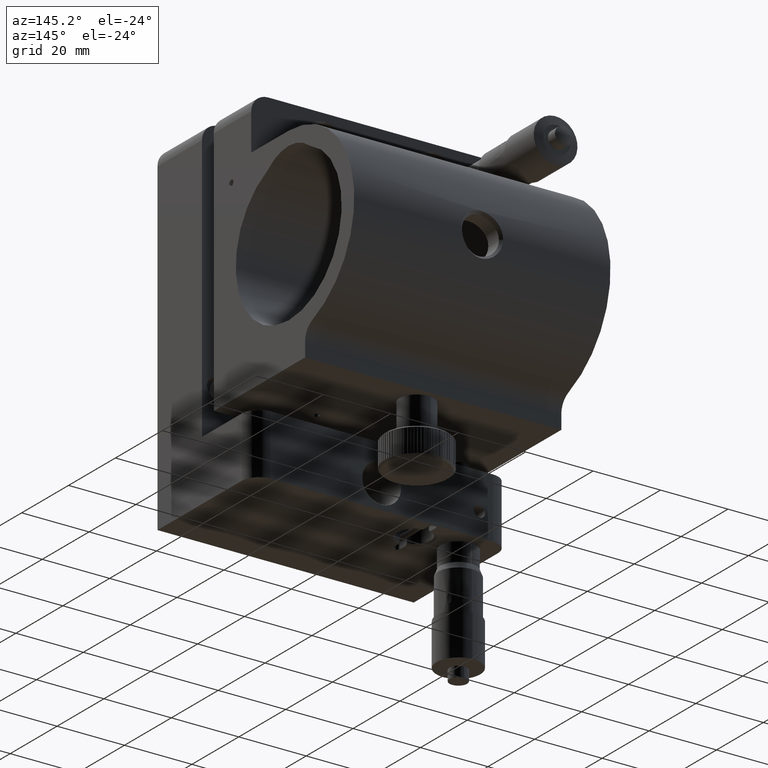
[diagram: clean part render]
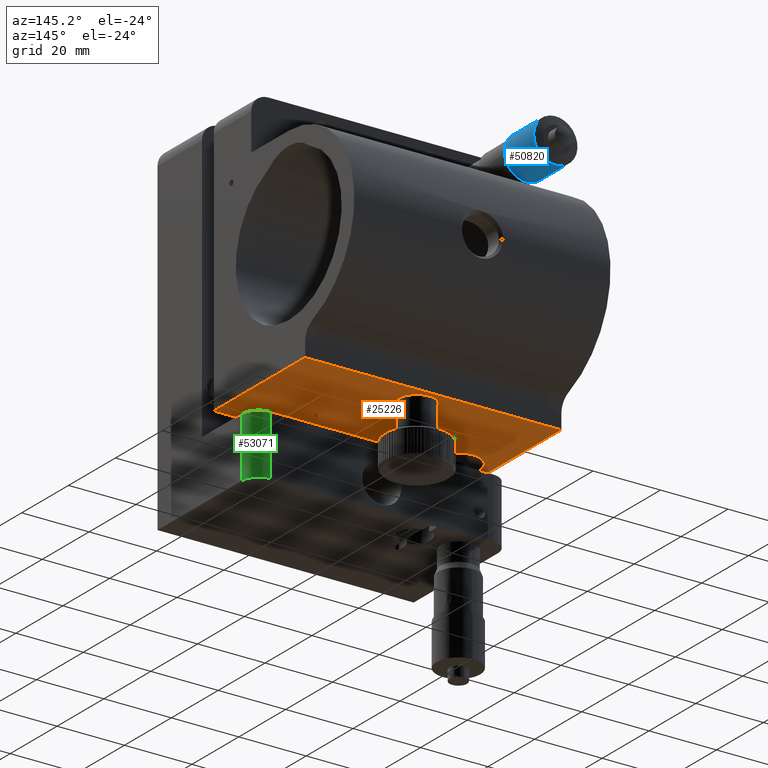
[diagram: same view with three faces highlighted in distinct colors, each labeled with its STEP entity id]
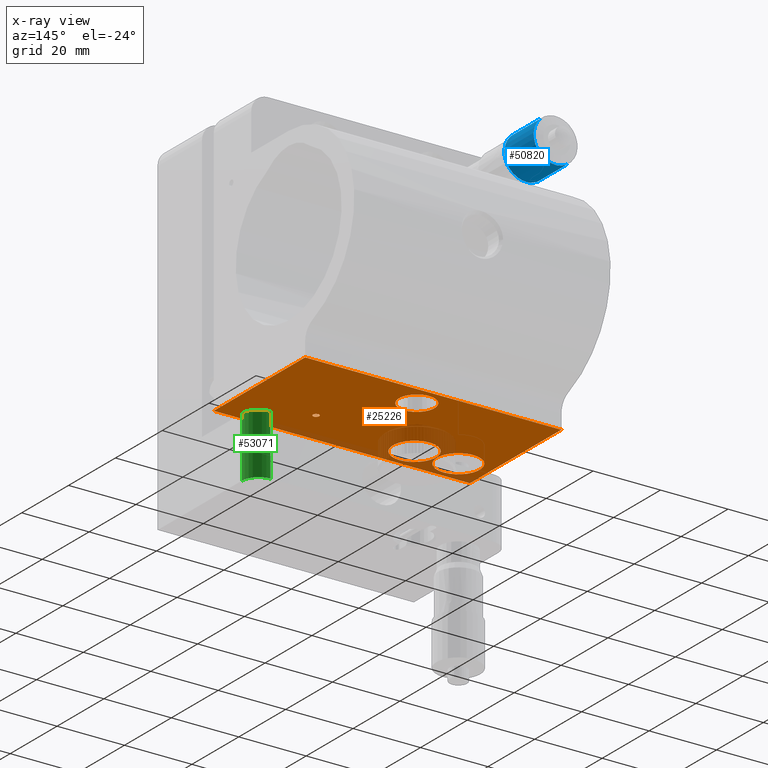
[diagram: x-ray of the same camera — body ghosted, the three highlighted faces saturated]
A machine part, auxiliary view with three faces highlighted in distinct colors.
The next image is the same camera in x-ray (body ghosted, the three faces saturated) — at least one of them is partly hidden behind the body in this view.
Their STEP definitions:

[orange] entity #25226 — the highlighted planar face has unit normal (-0, 0, 1).
#1284 = EDGE_LOOP ( 'NONE', ( #29967, #71806 ) ) ;
#1731 = EDGE_CURVE ( 'NONE', #67800, #79619, #37650, .T. ) ;
#2484 = DIRECTION ( 'NONE',  ( -0.0000000000000000000, 5.693451408334136400E-015, 1.000000000000000000 ) ) ;
#4480 = DIRECTION ( 'NONE',  ( 0.0000000000000000000, -1.000000000000000000, 5.286776307738821900E-015 ) ) ;
#4656 = EDGE_CURVE ( 'NONE', #81861, #44429, #77744, .T. ) ;
#8964 = DIRECTION ( 'NONE',  ( 0.0000000000000000000, -5.693451408334136400E-015, -1.000000000000000000 ) ) ;
#9217 = CARTESIAN_POINT ( 'NONE',  ( -37.99999999999999300, 23.99999999999979400, -35.00000000000009900 ) ) ;
#9511 = EDGE_LOOP ( 'NONE', ( #49583, #84380 ) ) ;
#11155 = FACE_OUTER_BOUND ( 'NONE', #70724, .T. ) ;
#11372 = EDGE_CURVE ( 'NONE', #89491, #56683, #25278, .T. ) ;
#11404 = VERTEX_POINT ( 'NONE', #81764 ) ;
#11419 = DIRECTION ( 'NONE',  ( -0.0000000000000000000, 5.693451408334136400E-015, 1.000000000000000000 ) ) ;
#12377 = EDGE_CURVE ( 'NONE', #11404, #14679, #49799, .T. ) ;
#13016 = CARTESIAN_POINT ( 'NONE',  ( 16.00000000000000700, 35.09999999999979500, -35.00000000000016300 ) ) ;
#13341 = FACE_BOUND ( 'NONE', #1284, .T. ) ;
#14010 = DIRECTION ( 'NONE',  ( 0.0000000000000000000, 1.000000000000000000, -5.463695987328524900E-015 ) ) ;
#14574 = VECTOR ( 'NONE', #60483, 1000.000000000000000 ) ;
#14679 = VERTEX_POINT ( 'NONE', #77576 ) ;
#15234 = VERTEX_POINT ( 'NONE', #43615 ) ;
#15934 = VERTEX_POINT ( 'NONE', #63987 ) ;
#19599 = VERTEX_POINT ( 'NONE', #66217 ) ;
#19631 = CARTESIAN_POINT ( 'NONE',  ( 38.00000000000000700, 23.99999999999979400, -35.00000000000009900 ) ) ;
#20973 = FACE_BOUND ( 'NONE', #9511, .T. ) ;
#21770 = AXIS2_PLACEMENT_3D ( 'NONE', #87088, #88012, #4480 ) ;
#22333 = DIRECTION ( 'NONE',  ( -1.000000000000000000, -0.0000000000000000000, -0.0000000000000000000 ) ) ;
#22703 = EDGE_CURVE ( 'NONE', #15934, #38071, #58740, .T. ) ;
#24306 = DIRECTION ( 'NONE',  ( -0.0000000000000000000, 1.000000000000000000, -5.693451408334136400E-015 ) ) ;
#25226 = ADVANCED_FACE ( 'NONE', ( #31915, #25356, #20973, #13341, #11155 ), #36026, .F. ) ;
#25278 = CIRCLE ( 'NONE', #68379, 5.250000000000018700 ) ;
#25356 = FACE_BOUND ( 'NONE', #85536, .T. ) ;
#25732 = DIRECTION ( 'NONE',  ( 0.0000000000000000000, -5.693451408334136400E-015, -1.000000000000000000 ) ) ;
#26789 = CARTESIAN_POINT ( 'NONE',  ( 16.00000000000000700, 36.89999999999979300, -35.00000000000017800 ) ) ;
#29216 = DIRECTION ( 'NONE',  ( 0.0000000000000000000, -5.693451408334136400E-015, -1.000000000000000000 ) ) ;
#29745 = DIRECTION ( 'NONE',  ( 0.0000000000000000000, 1.000000000000000000, -7.709882115452493200E-015 ) ) ;
#29763 = EDGE_CURVE ( 'NONE', #15234, #44429, #89440, .T. ) ;
#29967 = ORIENTED_EDGE ( 'NONE', *, *, #53510, .F. ) ;
#31325 = CARTESIAN_POINT ( 'NONE',  ( 8.315863060756662400E-015, 50.74999999999958100, -35.00000000000025600 ) ) ;
#31915 = FACE_BOUND ( 'NONE', #89379, .T. ) ;
#33190 = ORIENTED_EDGE ( 'NONE', *, *, #4656, .T. ) ;
#33248 = CARTESIAN_POINT ( 'NONE',  ( -15.99999999999999300, 38.39999999999960100, -35.00000000000018500 ) ) ;
#35137 = EDGE_CURVE ( 'NONE', #79619, #67800, #87957, .T. ) ;
#35607 = ORIENTED_EDGE ( 'NONE', *, *, #39092, .T. ) ;
#36026 = PLANE ( 'NONE',  #48894 ) ;
#36584 = ORIENTED_EDGE ( 'NONE', *, *, #11372, .T. ) ;
#37650 = CIRCLE ( 'NONE', #75320, 0.8999999999999980200 ) ;
#37868 = DIRECTION ( 'NONE',  ( 0.0000000000000000000, -1.000000000000000000, 5.421010862427523000E-015 ) ) ;
#38071 = VERTEX_POINT ( 'NONE', #33248 ) ;
#38465 = CARTESIAN_POINT ( 'NONE',  ( -15.99999999999999300, 31.99999999999959900, -35.00000000000014900 ) ) ;
#39092 = EDGE_CURVE ( 'NONE', #19599, #81861, #82801, .T. ) ;
#41302 = AXIS2_PLACEMENT_3D ( 'NONE', #38465, #2484, #37868 ) ;
#42043 = CARTESIAN_POINT ( 'NONE',  ( -28.99999999999999600, 31.99999999999959900, -35.00000000000014200 ) ) ;
#42282 = CARTESIAN_POINT ( 'NONE',  ( 38.00000000000000700, 62.99999999999979400, -35.00000000000032000 ) ) ;
#43126 = ORIENTED_EDGE ( 'NONE', *, *, #29763, .F. ) ;
#43615 = CARTESIAN_POINT ( 'NONE',  ( 38.00000000000000700, 62.99999999999979400, -35.00000000000032000 ) ) ;
#44405 = DIRECTION ( 'NONE',  ( 0.0000000000000000000, 1.000000000000000000, -5.463695987328524900E-015 ) ) ;
#44429 = VERTEX_POINT ( 'NONE', #68862 ) ;
#45930 = CIRCLE ( 'NONE', #21770, 5.250000000000018700 ) ;
#48097 = DIRECTION ( 'NONE',  ( -0.0000000000000000000, 5.693451408334136400E-015, 1.000000000000000000 ) ) ;
#48393 = EDGE_CURVE ( 'NONE', #19599, #15234, #83178, .T. ) ;
#48894 = AXIS2_PLACEMENT_3D ( 'NONE', #78032, #49734, #85053 ) ;
#48946 = CARTESIAN_POINT ( 'NONE',  ( 16.00000000000000700, 35.99999999999979400, -35.00000000000017100 ) ) ;
#49583 = ORIENTED_EDGE ( 'NONE', *, *, #1731, .F. ) ;
#49734 = DIRECTION ( 'NONE',  ( -0.0000000000000000000, 5.693451408334136400E-015, 1.000000000000000000 ) ) ;
#49799 = CIRCLE ( 'NONE', #60255, 6.350000000000001400 ) ;
#50021 = CARTESIAN_POINT ( 'NONE',  ( 7.672923491204299700E-015, 61.24999999999960900, -35.00000000000030600 ) ) ;
#50060 = CIRCLE ( 'NONE', #84765, 6.350000000000001400 ) ;
#52008 = CIRCLE ( 'NONE', #76890, 6.399999999999999500 ) ;
#53510 = EDGE_CURVE ( 'NONE', #14679, #11404, #50060, .T. ) ;
#54573 = VECTOR ( 'NONE', #22333, 1000.000000000000000 ) ;
#55494 = DIRECTION ( 'NONE',  ( 0.0000000000000000000, -5.693451408334136400E-015, -1.000000000000000000 ) ) ;
#56683 = VERTEX_POINT ( 'NONE', #31325 ) ;
#56773 = CARTESIAN_POINT ( 'NONE',  ( 38.00000000000000700, 62.99999999999979400, -35.00000000000032000 ) ) ;
#58740 = CIRCLE ( 'NONE', #41302, 6.399999999999999500 ) ;
#60146 = DIRECTION ( 'NONE',  ( 0.0000000000000000000, 1.000000000000000000, -7.709882115452493200E-015 ) ) ;
#60255 = AXIS2_PLACEMENT_3D ( 'NONE', #78196, #29216, #44405 ) ;
#60311 = VECTOR ( 'NONE', #24306, 1000.000000000000000 ) ;
#60483 = DIRECTION ( 'NONE',  ( -0.0000000000000000000, 1.000000000000000000, -5.693451408334136400E-015 ) ) ;
#61090 = DIRECTION ( 'NONE',  ( 0.0000000000000000000, -1.000000000000000000, 5.286776307738821900E-015 ) ) ;
#61806 = CARTESIAN_POINT ( 'NONE',  ( -15.99999999999999300, 31.99999999999959900, -35.00000000000014900 ) ) ;
#62939 = ORIENTED_EDGE ( 'NONE', *, *, #22703, .T. ) ;
#63987 = CARTESIAN_POINT ( 'NONE',  ( -15.99999999999999300, 25.59999999999960000, -35.00000000000011400 ) ) ;
#65697 = EDGE_CURVE ( 'NONE', #38071, #15934, #52008, .T. ) ;
#66217 = CARTESIAN_POINT ( 'NONE',  ( 38.00000000000000700, 23.99999999999979400, -35.00000000000009900 ) ) ;
#66469 = VECTOR ( 'NONE', #90030, 1000.000000000000000 ) ;
#67800 = VERTEX_POINT ( 'NONE', #26789 ) ;
#68379 = AXIS2_PLACEMENT_3D ( 'NONE', #89114, #11419, #61090 ) ;
#68862 = CARTESIAN_POINT ( 'NONE',  ( -37.99999999999999300, 62.99999999999979400, -35.00000000000032000 ) ) ;
#70724 = EDGE_LOOP ( 'NONE', ( #33190, #43126, #83426, #35607 ) ) ;
#71806 = ORIENTED_EDGE ( 'NONE', *, *, #12377, .F. ) ;
#75320 = AXIS2_PLACEMENT_3D ( 'NONE', #48946, #8964, #29745 ) ;
#75515 = ORIENTED_EDGE ( 'NONE', *, *, #76737, .T. ) ;
#76737 = EDGE_CURVE ( 'NONE', #56683, #89491, #45930, .T. ) ;
#76890 = AXIS2_PLACEMENT_3D ( 'NONE', #61806, #48097, #83085 ) ;
#77576 = CARTESIAN_POINT ( 'NONE',  ( -28.99999999999999600, 38.34999999999959600, -35.00000000000017800 ) ) ;
#77744 = LINE ( 'NONE', #82345, #14574 ) ;
#78032 = CARTESIAN_POINT ( 'NONE',  ( 38.00000000000000700, 62.99999999999979400, -35.00000000000032000 ) ) ;
#78196 = CARTESIAN_POINT ( 'NONE',  ( -28.99999999999999600, 31.99999999999959900, -35.00000000000014200 ) ) ;
#79619 = VERTEX_POINT ( 'NONE', #13016 ) ;
#80375 = ORIENTED_EDGE ( 'NONE', *, *, #65697, .T. ) ;
#81317 = AXIS2_PLACEMENT_3D ( 'NONE', #81428, #25732, #60146 ) ;
#81428 = CARTESIAN_POINT ( 'NONE',  ( 16.00000000000000700, 35.99999999999979400, -35.00000000000017100 ) ) ;
#81764 = CARTESIAN_POINT ( 'NONE',  ( -28.99999999999999600, 25.64999999999959700, -35.00000000000010700 ) ) ;
#81861 = VERTEX_POINT ( 'NONE', #9217 ) ;
#82345 = CARTESIAN_POINT ( 'NONE',  ( -37.99999999999999300, 62.99999999999979400, -35.00000000000032000 ) ) ;
#82801 = LINE ( 'NONE', #19631, #66469 ) ;
#83085 = DIRECTION ( 'NONE',  ( 0.0000000000000000000, -1.000000000000000000, 5.421010862427523000E-015 ) ) ;
#83178 = LINE ( 'NONE', #42282, #60311 ) ;
#83426 = ORIENTED_EDGE ( 'NONE', *, *, #48393, .F. ) ;
#84380 = ORIENTED_EDGE ( 'NONE', *, *, #35137, .F. ) ;
#84765 = AXIS2_PLACEMENT_3D ( 'NONE', #42043, #55494, #14010 ) ;
#85053 = DIRECTION ( 'NONE',  ( 0.0000000000000000000, -1.000000000000000000, 5.693451408334136400E-015 ) ) ;
#85536 = EDGE_LOOP ( 'NONE', ( #80375, #62939 ) ) ;
#87088 = CARTESIAN_POINT ( 'NONE',  ( 7.672923491204299700E-015, 55.99999999999959500, -35.00000000000028400 ) ) ;
#87957 = CIRCLE ( 'NONE', #81317, 0.8999999999999980200 ) ;
#88012 = DIRECTION ( 'NONE',  ( -0.0000000000000000000, 5.693451408334136400E-015, 1.000000000000000000 ) ) ;
#89114 = CARTESIAN_POINT ( 'NONE',  ( 7.672923491204299700E-015, 55.99999999999959500, -35.00000000000028400 ) ) ;
#89379 = EDGE_LOOP ( 'NONE', ( #36584, #75515 ) ) ;
#89440 = LINE ( 'NONE', #56773, #54573 ) ;
#89491 = VERTEX_POINT ( 'NONE', #50021 ) ;
#90030 = DIRECTION ( 'NONE',  ( -1.000000000000000000, -0.0000000000000000000, -0.0000000000000000000 ) ) ;

[blue] entity #50820 — the highlighted cylindrical surface (edge-blend (fillet) strip) has radius 6.5 mm, axis along (-0, 1, -0).
#249 = AXIS2_PLACEMENT_3D ( 'NONE', #46811, #67520, #83619 ) ;
#708 = CIRCLE ( 'NONE', #82483, 6.500000000000026600 ) ;
#4585 = CARTESIAN_POINT ( 'NONE',  ( -28.99999999999999600, 61.00000000000000000, 35.99999999999995700 ) ) ;
#5612 = FACE_OUTER_BOUND ( 'NONE', #9715, .T. ) ;
#5986 = CARTESIAN_POINT ( 'NONE',  ( -32.31942183251296500, 60.99999999999997900, 30.41149047617908300 ) ) ;
#6756 = CARTESIAN_POINT ( 'NONE',  ( -32.31942183251298000, 73.49999999999998600, 30.41149047617902600 ) ) ;
#9715 = EDGE_LOOP ( 'NONE', ( #88837, #21089, #17732, #53255 ) ) ;
#11925 = DIRECTION ( 'NONE',  ( -0.5106802819250694200, -3.202566417187938600E-015, -0.8597706959724386000 ) ) ;
#15175 = DIRECTION ( 'NONE',  ( -1.894068659228016300E-016, 1.000000000000000000, -3.087091385534854800E-015 ) ) ;
#15542 = CARTESIAN_POINT ( 'NONE',  ( -29.00000000000000400, 90.04102306920764000, 35.99999999999986500 ) ) ;
#15573 = LINE ( 'NONE', #40982, #71143 ) ;
#16206 = VERTEX_POINT ( 'NONE', #5986 ) ;
#17732 = ORIENTED_EDGE ( 'NONE', *, *, #56388, .T. ) ;
#21089 = ORIENTED_EDGE ( 'NONE', *, *, #60177, .T. ) ;
#21912 = CARTESIAN_POINT ( 'NONE',  ( -32.31942183251297300, 90.04102306920762500, 30.41149047617899000 ) ) ;
#28686 = CARTESIAN_POINT ( 'NONE',  ( -25.68057816748707400, 73.50000000000001400, 41.58850952382075400 ) ) ;
#32772 = CARTESIAN_POINT ( 'NONE',  ( -25.68057816748704500, 61.00000000000002100, 41.58850952382080400 ) ) ;
#37673 = VERTEX_POINT ( 'NONE', #6756 ) ;
#40982 = CARTESIAN_POINT ( 'NONE',  ( -25.68057816748704500, 90.04102306920765400, 41.58850952382074000 ) ) ;
#41279 = DIRECTION ( 'NONE',  ( -1.894068659228016300E-016, 1.000000000000000000, -3.087091385534854800E-015 ) ) ;
#41524 = EDGE_CURVE ( 'NONE', #64363, #81457, #15573, .T. ) ;
#46643 = LINE ( 'NONE', #21912, #76048 ) ;
#46811 = CARTESIAN_POINT ( 'NONE',  ( -29.00000000000002100, 73.50000000000000000, 35.99999999999990100 ) ) ;
#50820 = ADVANCED_FACE ( 'NONE', ( #5612 ), #54725, .T. ) ;
#53255 = ORIENTED_EDGE ( 'NONE', *, *, #63665, .F. ) ;
#54725 = CYLINDRICAL_SURFACE ( 'NONE', #71813, 6.500000000000026600 ) ;
#56388 = EDGE_CURVE ( 'NONE', #16206, #37673, #46643, .T. ) ;
#60177 = EDGE_CURVE ( 'NONE', #64363, #16206, #708, .T. ) ;
#63665 = EDGE_CURVE ( 'NONE', #81457, #37673, #73435, .T. ) ;
#64363 = VERTEX_POINT ( 'NONE', #32772 ) ;
#67520 = DIRECTION ( 'NONE',  ( -1.894068659228016300E-016, 1.000000000000000000, -3.087091385534854800E-015 ) ) ;
#68286 = DIRECTION ( 'NONE',  ( -1.894068659228016300E-016, 1.000000000000000000, -3.087091385534854800E-015 ) ) ;
#69801 = DIRECTION ( 'NONE',  ( -1.894068659228016300E-016, 1.000000000000000000, -3.087091385534854800E-015 ) ) ;
#71143 = VECTOR ( 'NONE', #41279, 1000.000000000000000 ) ;
#71813 = AXIS2_PLACEMENT_3D ( 'NONE', #15542, #69801, #84699 ) ;
#73435 = CIRCLE ( 'NONE', #249, 6.500000000000024000 ) ;
#76048 = VECTOR ( 'NONE', #15175, 1000.000000000000000 ) ;
#81457 = VERTEX_POINT ( 'NONE', #28686 ) ;
#82483 = AXIS2_PLACEMENT_3D ( 'NONE', #4585, #68286, #11925 ) ;
#83619 = DIRECTION ( 'NONE',  ( -0.5106802819250689800, -2.135044278125293100E-015, -0.8597706959724389400 ) ) ;
#84699 = DIRECTION ( 'NONE',  ( -0.5106802819250694200, -2.135044278125292300E-015, -0.8597706959724386000 ) ) ;
#88837 = ORIENTED_EDGE ( 'NONE', *, *, #41524, .F. ) ;

[green] entity #53071 — the highlighted cylindrical surface (edge-blend (fillet) strip) has radius 5 mm, axis along (0, 0, -1).
#6687 = CARTESIAN_POINT ( 'NONE',  ( 38.00000000000000000, 36.00000000000000000, -40.10000000000000100 ) ) ;
#8371 = DIRECTION ( 'NONE',  ( -1.000000000000000000, 0.0000000000000000000, 0.0000000000000000000 ) ) ;
#8624 = DIRECTION ( 'NONE',  ( -0.0000000000000000000, -0.0000000000000000000, 1.000000000000000000 ) ) ;
#8974 = CARTESIAN_POINT ( 'NONE',  ( 33.00000000000000000, 36.00000000000000000, -40.10000000000000100 ) ) ;
#11710 = VERTEX_POINT ( 'NONE', #11905 ) ;
#11905 = CARTESIAN_POINT ( 'NONE',  ( 33.00000000000000000, 40.99999999999999300, -40.10000000000000100 ) ) ;
#15192 = VERTEX_POINT ( 'NONE', #34516 ) ;
#15710 = EDGE_CURVE ( 'NONE', #11710, #15192, #37568, .T. ) ;
#16331 = AXIS2_PLACEMENT_3D ( 'NONE', #57715, #8624, #44008 ) ;
#17976 = VECTOR ( 'NONE', #61596, 1000.000000000000000 ) ;
#20512 = CARTESIAN_POINT ( 'NONE',  ( 33.00000000000000000, 36.00000000000000000, -58.00000000000000700 ) ) ;
#21367 = ORIENTED_EDGE ( 'NONE', *, *, #36900, .F. ) ;
#27150 = VERTEX_POINT ( 'NONE', #90497 ) ;
#27911 = VECTOR ( 'NONE', #28351, 1000.000000000000000 ) ;
#28351 = DIRECTION ( 'NONE',  ( 0.0000000000000000000, 0.0000000000000000000, 1.000000000000000000 ) ) ;
#32762 = AXIS2_PLACEMENT_3D ( 'NONE', #20512, #54652, #69237 ) ;
#34516 = CARTESIAN_POINT ( 'NONE',  ( 33.00000000000000000, 40.99999999999999300, -58.00000000000000700 ) ) ;
#35739 = ORIENTED_EDGE ( 'NONE', *, *, #69897, .F. ) ;
#36900 = EDGE_CURVE ( 'NONE', #27150, #42326, #82325, .T. ) ;
#37568 = LINE ( 'NONE', #82887, #17976 ) ;
#42326 = VERTEX_POINT ( 'NONE', #86222 ) ;
#44008 = DIRECTION ( 'NONE',  ( -1.000000000000000000, 0.0000000000000000000, 0.0000000000000000000 ) ) ;
#50132 = FACE_OUTER_BOUND ( 'NONE', #82693, .T. ) ;
#53071 = ADVANCED_FACE ( 'NONE', ( #50132 ), #64327, .T. ) ;
#54460 = EDGE_CURVE ( 'NONE', #15192, #27150, #65369, .T. ) ;
#54652 = DIRECTION ( 'NONE',  ( 0.0000000000000000000, -1.692413147294445700E-016, -1.000000000000000000 ) ) ;
#57715 = CARTESIAN_POINT ( 'NONE',  ( 33.00000000000000000, 36.00000000000000000, -40.10000000000000100 ) ) ;
#58510 = AXIS2_PLACEMENT_3D ( 'NONE', #8974, #70831, #8371 ) ;
#60444 = CIRCLE ( 'NONE', #16331, 5.000000000000000900 ) ;
#61596 = DIRECTION ( 'NONE',  ( -0.0000000000000000000, -0.0000000000000000000, -1.000000000000000000 ) ) ;
#63217 = ORIENTED_EDGE ( 'NONE', *, *, #15710, .F. ) ;
#64327 = CYLINDRICAL_SURFACE ( 'NONE', #58510, 5.000000000000000900 ) ;
#65369 = CIRCLE ( 'NONE', #32762, 5.000000000000000900 ) ;
#68442 = ORIENTED_EDGE ( 'NONE', *, *, #54460, .F. ) ;
#69237 = DIRECTION ( 'NONE',  ( 0.0000000000000000000, -1.000000000000000000, 0.0000000000000000000 ) ) ;
#69897 = EDGE_CURVE ( 'NONE', #42326, #11710, #60444, .T. ) ;
#70831 = DIRECTION ( 'NONE',  ( 0.0000000000000000000, 0.0000000000000000000, -1.000000000000000000 ) ) ;
#82325 = LINE ( 'NONE', #6687, #27911 ) ;
#82693 = EDGE_LOOP ( 'NONE', ( #68442, #63217, #35739, #21367 ) ) ;
#82887 = CARTESIAN_POINT ( 'NONE',  ( 33.00000000000000000, 40.99999999999999300, -58.00000000000000700 ) ) ;
#86222 = CARTESIAN_POINT ( 'NONE',  ( 38.00000000000000000, 36.00000000000000000, -40.10000000000000100 ) ) ;
#90497 = CARTESIAN_POINT ( 'NONE',  ( 38.00000000000000000, 36.00000000000000000, -58.00000000000000700 ) ) ;